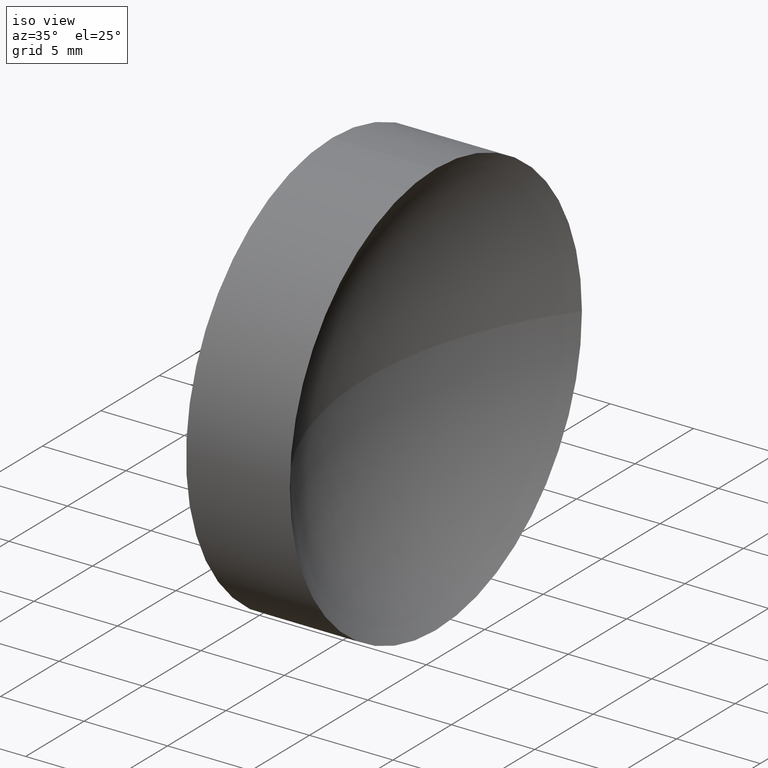
[diagram: clean part render]
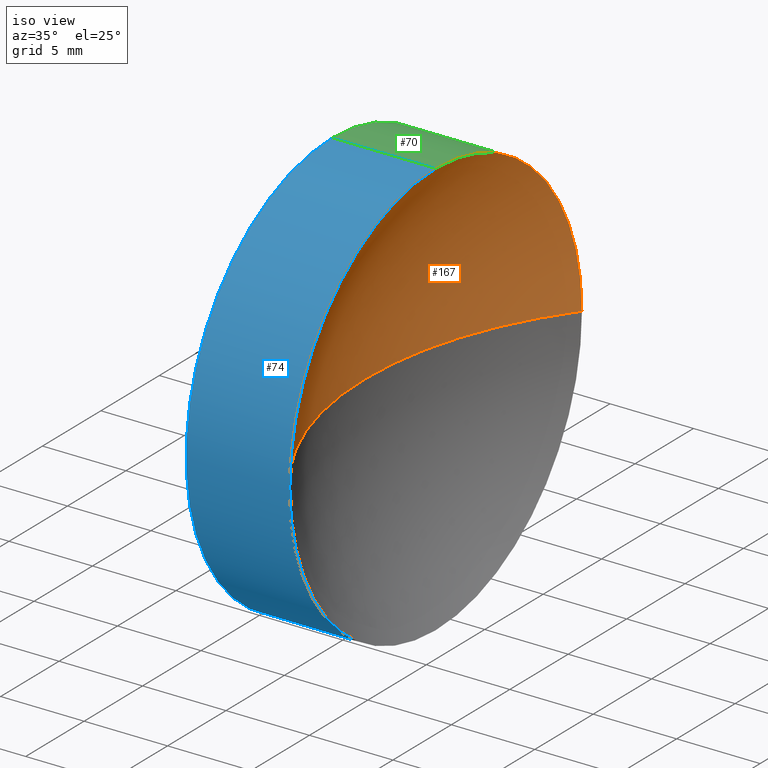
[diagram: same view with three faces highlighted in distinct colors, each labeled with its STEP entity id]
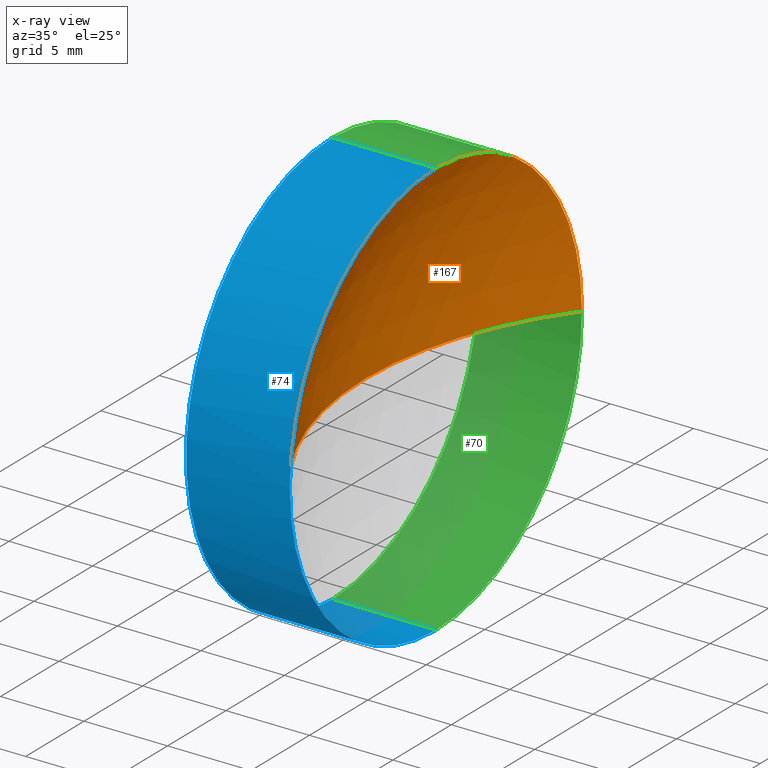
[diagram: x-ray of the same camera — body ghosted, the three highlighted faces saturated]
A machine part, iso view with three faces highlighted in distinct colors.
The next image is the same camera in x-ray (body ghosted, the three faces saturated) — at least one of them is partly hidden behind the body in this view.
Their STEP definitions:

[orange] entity #167 — the highlighted spherical surface has radius 20.65 mm.
#4 = CIRCLE ( 'NONE', #84, 20.65000000000000200 ) ;
#11 = CIRCLE ( 'NONE', #94, 20.65000000000000200 ) ;
#16 = CARTESIAN_POINT ( 'NONE',  ( 80.18233705252612300, 32.61076812922678400, 0.0000000000000000000 ) ) ;
#18 = SPHERICAL_SURFACE ( 'NONE', #184, 20.65000000000000200 ) ;
#30 = EDGE_CURVE ( 'NONE', #101, #161, #95, .T. ) ;
#33 = DIRECTION ( 'NONE',  ( 0.0000000000000000000, -1.224646799147353200E-016, 1.000000000000000000 ) ) ;
#35 = DIRECTION ( 'NONE',  ( -1.000000000000000000, -0.0000000000000000000, -0.0000000000000000000 ) ) ;
#38 = EDGE_CURVE ( 'NONE', #157, #101, #126, .T. ) ;
#45 = DIRECTION ( 'NONE',  ( 0.0000000000000000000, 0.0000000000000000000, 1.000000000000000000 ) ) ;
#55 = CARTESIAN_POINT ( 'NONE',  ( 80.18233705252612300, 32.61076812922678400, 0.0000000000000000000 ) ) ;
#59 = AXIS2_PLACEMENT_3D ( 'NONE', #61, #35, #160 ) ;
#61 = CARTESIAN_POINT ( 'NONE',  ( 63.74541215764386900, 32.61076812922678400, 0.0000000000000000000 ) ) ;
#66 = VERTEX_POINT ( 'NONE', #148 ) ;
#67 = EDGE_CURVE ( 'NONE', #157, #66, #11, .T. ) ;
#84 = AXIS2_PLACEMENT_3D ( 'NONE', #55, #33, #155 ) ;
#85 = ORIENTED_EDGE ( 'NONE', *, *, #30, .F. ) ;
#87 = DIRECTION ( 'NONE',  ( 0.0000000000000000000, 0.0000000000000000000, -1.000000000000000000 ) ) ;
#92 = DIRECTION ( 'NONE',  ( 0.0000000000000000000, 0.0000000000000000000, 1.000000000000000000 ) ) ;
#94 = AXIS2_PLACEMENT_3D ( 'NONE', #16, #87, #116 ) ;
#95 = CIRCLE ( 'NONE', #59, 12.49999999999999600 ) ;
#101 = VERTEX_POINT ( 'NONE', #127 ) ;
#106 = CARTESIAN_POINT ( 'NONE',  ( 63.74541215764386900, 20.11076812922679100, 0.0000000000000000000 ) ) ;
#107 = DIRECTION ( 'NONE',  ( 0.0000000000000000000, -1.000000000000000000, 0.0000000000000000000 ) ) ;
#113 = AXIS2_PLACEMENT_3D ( 'NONE', #119, #120, #92 ) ;
#116 = DIRECTION ( 'NONE',  ( -1.000000000000000000, 0.0000000000000000000, 0.0000000000000000000 ) ) ;
#119 = CARTESIAN_POINT ( 'NONE',  ( 63.74541215764386900, 32.61076812922678400, 0.0000000000000000000 ) ) ;
#120 = DIRECTION ( 'NONE',  ( -1.000000000000000000, -0.0000000000000000000, -0.0000000000000000000 ) ) ;
#125 = ORIENTED_EDGE ( 'NONE', *, *, #67, .T. ) ;
#126 = CIRCLE ( 'NONE', #113, 12.49999999999999600 ) ;
#127 = CARTESIAN_POINT ( 'NONE',  ( 63.74541215764386900, 32.61076812922678400, 12.49999999999999600 ) ) ;
#128 = CARTESIAN_POINT ( 'NONE',  ( 80.18233705252612300, 32.61076812922678400, 0.0000000000000000000 ) ) ;
#130 = EDGE_LOOP ( 'NONE', ( #162, #85, #147, #125 ) ) ;
#135 = EDGE_CURVE ( 'NONE', #161, #66, #4, .T. ) ;
#144 = CARTESIAN_POINT ( 'NONE',  ( 63.74541215764386900, 45.11076812922678400, 1.530808498934191100E-015 ) ) ;
#147 = ORIENTED_EDGE ( 'NONE', *, *, #38, .F. ) ;
#148 = CARTESIAN_POINT ( 'NONE',  ( 59.53233705252612400, 32.61076812922678400, 0.0000000000000000000 ) ) ;
#155 = DIRECTION ( 'NONE',  ( 0.0000000000000000000, -1.000000000000000000, -1.224646799147353200E-016 ) ) ;
#157 = VERTEX_POINT ( 'NONE', #106 ) ;
#160 = DIRECTION ( 'NONE',  ( 0.0000000000000000000, 0.0000000000000000000, 1.000000000000000000 ) ) ;
#161 = VERTEX_POINT ( 'NONE', #144 ) ;
#162 = ORIENTED_EDGE ( 'NONE', *, *, #135, .F. ) ;
#167 = ADVANCED_FACE ( 'NONE', ( #180 ), #18, .F. ) ;
#180 = FACE_OUTER_BOUND ( 'NONE', #130, .T. ) ;
#184 = AXIS2_PLACEMENT_3D ( 'NONE', #128, #45, #107 ) ;

[blue] entity #74 — the highlighted cylindrical surface (partial cylindrical patch) has radius 12.5 mm, axis along (-1, -0, -0).
#1 = DIRECTION ( 'NONE',  ( -1.000000000000000000, -0.0000000000000000000, -0.0000000000000000000 ) ) ;
#9 = CIRCLE ( 'NONE', #39, 12.49999999999999600 ) ;
#15 = ORIENTED_EDGE ( 'NONE', *, *, #173, .T. ) ;
#17 = DIRECTION ( 'NONE',  ( 0.0000000000000000000, 0.0000000000000000000, 1.000000000000000000 ) ) ;
#19 = ORIENTED_EDGE ( 'NONE', *, *, #38, .T. ) ;
#22 = CYLINDRICAL_SURFACE ( 'NONE', #81, 12.49999999999999600 ) ;
#23 = VERTEX_POINT ( 'NONE', #115 ) ;
#27 = CARTESIAN_POINT ( 'NONE',  ( 63.74541215764386900, 32.61076812922678400, -12.49999999999999600 ) ) ;
#28 = CARTESIAN_POINT ( 'NONE',  ( 57.53233705252611700, 32.61076812922678400, 0.0000000000000000000 ) ) ;
#29 = ORIENTED_EDGE ( 'NONE', *, *, #185, .F. ) ;
#32 = DIRECTION ( 'NONE',  ( 0.0000000000000000000, 0.0000000000000000000, 1.000000000000000000 ) ) ;
#36 = DIRECTION ( 'NONE',  ( -1.000000000000000000, -0.0000000000000000000, -0.0000000000000000000 ) ) ;
#37 = VERTEX_POINT ( 'NONE', #27 ) ;
#38 = EDGE_CURVE ( 'NONE', #157, #101, #126, .T. ) ;
#39 = AXIS2_PLACEMENT_3D ( 'NONE', #28, #1, #104 ) ;
#43 = VECTOR ( 'NONE', #145, 1000.000000000000000 ) ;
#46 = CARTESIAN_POINT ( 'NONE',  ( 56.10091507999716500, 32.61076812922678400, -12.49999999999999600 ) ) ;
#47 = EDGE_CURVE ( 'NONE', #101, #23, #137, .T. ) ;
#49 = CARTESIAN_POINT ( 'NONE',  ( 56.10091507999716500, 32.61076812922678400, 12.49999999999999600 ) ) ;
#56 = CARTESIAN_POINT ( 'NONE',  ( 57.53233705252611700, 32.61076812922678400, -12.49999999999999600 ) ) ;
#57 = EDGE_LOOP ( 'NONE', ( #29, #15, #19, #181, #123 ) ) ;
#62 = FACE_OUTER_BOUND ( 'NONE', #57, .T. ) ;
#74 = ADVANCED_FACE ( 'NONE', ( #62 ), #22, .T. ) ;
#75 = DIRECTION ( 'NONE',  ( -1.000000000000000000, -0.0000000000000000000, -0.0000000000000000000 ) ) ;
#81 = AXIS2_PLACEMENT_3D ( 'NONE', #172, #114, #32 ) ;
#83 = CIRCLE ( 'NONE', #151, 12.49999999999999600 ) ;
#92 = DIRECTION ( 'NONE',  ( 0.0000000000000000000, 0.0000000000000000000, 1.000000000000000000 ) ) ;
#98 = VECTOR ( 'NONE', #36, 1000.000000000000000 ) ;
#101 = VERTEX_POINT ( 'NONE', #127 ) ;
#104 = DIRECTION ( 'NONE',  ( 0.0000000000000000000, 0.0000000000000000000, 1.000000000000000000 ) ) ;
#106 = CARTESIAN_POINT ( 'NONE',  ( 63.74541215764386900, 20.11076812922679100, 0.0000000000000000000 ) ) ;
#113 = AXIS2_PLACEMENT_3D ( 'NONE', #119, #120, #92 ) ;
#114 = DIRECTION ( 'NONE',  ( -1.000000000000000000, -0.0000000000000000000, -0.0000000000000000000 ) ) ;
#115 = CARTESIAN_POINT ( 'NONE',  ( 57.53233705252611700, 32.61076812922678400, 12.49999999999999600 ) ) ;
#119 = CARTESIAN_POINT ( 'NONE',  ( 63.74541215764386900, 32.61076812922678400, 0.0000000000000000000 ) ) ;
#120 = DIRECTION ( 'NONE',  ( -1.000000000000000000, -0.0000000000000000000, -0.0000000000000000000 ) ) ;
#123 = ORIENTED_EDGE ( 'NONE', *, *, #166, .F. ) ;
#126 = CIRCLE ( 'NONE', #113, 12.49999999999999600 ) ;
#127 = CARTESIAN_POINT ( 'NONE',  ( 63.74541215764386900, 32.61076812922678400, 12.49999999999999600 ) ) ;
#137 = LINE ( 'NONE', #49, #98 ) ;
#139 = LINE ( 'NONE', #46, #43 ) ;
#143 = CARTESIAN_POINT ( 'NONE',  ( 63.74541215764386900, 32.61076812922678400, 0.0000000000000000000 ) ) ;
#145 = DIRECTION ( 'NONE',  ( -1.000000000000000000, -0.0000000000000000000, -0.0000000000000000000 ) ) ;
#151 = AXIS2_PLACEMENT_3D ( 'NONE', #143, #75, #17 ) ;
#157 = VERTEX_POINT ( 'NONE', #106 ) ;
#166 = EDGE_CURVE ( 'NONE', #183, #23, #9, .T. ) ;
#172 = CARTESIAN_POINT ( 'NONE',  ( 56.10091507999716500, 32.61076812922678400, 0.0000000000000000000 ) ) ;
#173 = EDGE_CURVE ( 'NONE', #37, #157, #83, .T. ) ;
#181 = ORIENTED_EDGE ( 'NONE', *, *, #47, .T. ) ;
#183 = VERTEX_POINT ( 'NONE', #56 ) ;
#185 = EDGE_CURVE ( 'NONE', #37, #183, #139, .T. ) ;

[green] entity #70 — the highlighted cylindrical surface (partial cylindrical patch) has radius 12.5 mm, axis along (-1, -0, -0).
#3 = DIRECTION ( 'NONE',  ( 0.0000000000000000000, 0.0000000000000000000, 1.000000000000000000 ) ) ;
#10 = EDGE_CURVE ( 'NONE', #161, #37, #140, .T. ) ;
#14 = ORIENTED_EDGE ( 'NONE', *, *, #24, .F. ) ;
#23 = VERTEX_POINT ( 'NONE', #115 ) ;
#24 = EDGE_CURVE ( 'NONE', #23, #183, #171, .T. ) ;
#26 = ORIENTED_EDGE ( 'NONE', *, *, #10, .T. ) ;
#27 = CARTESIAN_POINT ( 'NONE',  ( 63.74541215764386900, 32.61076812922678400, -12.49999999999999600 ) ) ;
#30 = EDGE_CURVE ( 'NONE', #101, #161, #95, .T. ) ;
#35 = DIRECTION ( 'NONE',  ( -1.000000000000000000, -0.0000000000000000000, -0.0000000000000000000 ) ) ;
#36 = DIRECTION ( 'NONE',  ( -1.000000000000000000, -0.0000000000000000000, -0.0000000000000000000 ) ) ;
#37 = VERTEX_POINT ( 'NONE', #27 ) ;
#41 = CYLINDRICAL_SURFACE ( 'NONE', #63, 12.49999999999999600 ) ;
#43 = VECTOR ( 'NONE', #145, 1000.000000000000000 ) ;
#46 = CARTESIAN_POINT ( 'NONE',  ( 56.10091507999716500, 32.61076812922678400, -12.49999999999999600 ) ) ;
#47 = EDGE_CURVE ( 'NONE', #101, #23, #137, .T. ) ;
#48 = DIRECTION ( 'NONE',  ( 0.0000000000000000000, 0.0000000000000000000, 1.000000000000000000 ) ) ;
#49 = CARTESIAN_POINT ( 'NONE',  ( 56.10091507999716500, 32.61076812922678400, 12.49999999999999600 ) ) ;
#52 = FACE_OUTER_BOUND ( 'NONE', #93, .T. ) ;
#53 = AXIS2_PLACEMENT_3D ( 'NONE', #156, #86, #103 ) ;
#56 = CARTESIAN_POINT ( 'NONE',  ( 57.53233705252611700, 32.61076812922678400, -12.49999999999999600 ) ) ;
#59 = AXIS2_PLACEMENT_3D ( 'NONE', #61, #35, #160 ) ;
#61 = CARTESIAN_POINT ( 'NONE',  ( 63.74541215764386900, 32.61076812922678400, 0.0000000000000000000 ) ) ;
#63 = AXIS2_PLACEMENT_3D ( 'NONE', #149, #178, #3 ) ;
#70 = ADVANCED_FACE ( 'NONE', ( #52 ), #41, .T. ) ;
#71 = ORIENTED_EDGE ( 'NONE', *, *, #30, .T. ) ;
#72 = AXIS2_PLACEMENT_3D ( 'NONE', #133, #134, #48 ) ;
#86 = DIRECTION ( 'NONE',  ( -1.000000000000000000, -0.0000000000000000000, -0.0000000000000000000 ) ) ;
#89 = ORIENTED_EDGE ( 'NONE', *, *, #185, .T. ) ;
#93 = EDGE_LOOP ( 'NONE', ( #26, #89, #14, #165, #71 ) ) ;
#95 = CIRCLE ( 'NONE', #59, 12.49999999999999600 ) ;
#98 = VECTOR ( 'NONE', #36, 1000.000000000000000 ) ;
#101 = VERTEX_POINT ( 'NONE', #127 ) ;
#103 = DIRECTION ( 'NONE',  ( 0.0000000000000000000, 0.0000000000000000000, 1.000000000000000000 ) ) ;
#115 = CARTESIAN_POINT ( 'NONE',  ( 57.53233705252611700, 32.61076812922678400, 12.49999999999999600 ) ) ;
#127 = CARTESIAN_POINT ( 'NONE',  ( 63.74541215764386900, 32.61076812922678400, 12.49999999999999600 ) ) ;
#133 = CARTESIAN_POINT ( 'NONE',  ( 57.53233705252611700, 32.61076812922678400, 0.0000000000000000000 ) ) ;
#134 = DIRECTION ( 'NONE',  ( -1.000000000000000000, -0.0000000000000000000, -0.0000000000000000000 ) ) ;
#137 = LINE ( 'NONE', #49, #98 ) ;
#139 = LINE ( 'NONE', #46, #43 ) ;
#140 = CIRCLE ( 'NONE', #53, 12.49999999999999600 ) ;
#144 = CARTESIAN_POINT ( 'NONE',  ( 63.74541215764386900, 45.11076812922678400, 1.530808498934191100E-015 ) ) ;
#145 = DIRECTION ( 'NONE',  ( -1.000000000000000000, -0.0000000000000000000, -0.0000000000000000000 ) ) ;
#149 = CARTESIAN_POINT ( 'NONE',  ( 56.10091507999716500, 32.61076812922678400, 0.0000000000000000000 ) ) ;
#156 = CARTESIAN_POINT ( 'NONE',  ( 63.74541215764386900, 32.61076812922678400, 0.0000000000000000000 ) ) ;
#160 = DIRECTION ( 'NONE',  ( 0.0000000000000000000, 0.0000000000000000000, 1.000000000000000000 ) ) ;
#161 = VERTEX_POINT ( 'NONE', #144 ) ;
#165 = ORIENTED_EDGE ( 'NONE', *, *, #47, .F. ) ;
#171 = CIRCLE ( 'NONE', #72, 12.49999999999999600 ) ;
#178 = DIRECTION ( 'NONE',  ( -1.000000000000000000, -0.0000000000000000000, -0.0000000000000000000 ) ) ;
#183 = VERTEX_POINT ( 'NONE', #56 ) ;
#185 = EDGE_CURVE ( 'NONE', #37, #183, #139, .T. ) ;